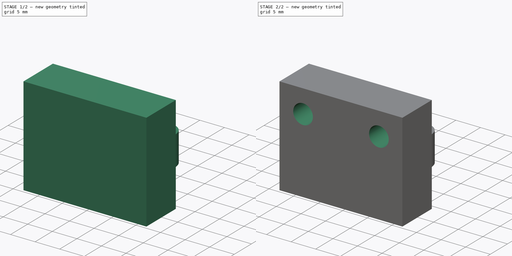
[diagram: build sequence overview — one tinted view per stage of 2, left to right]
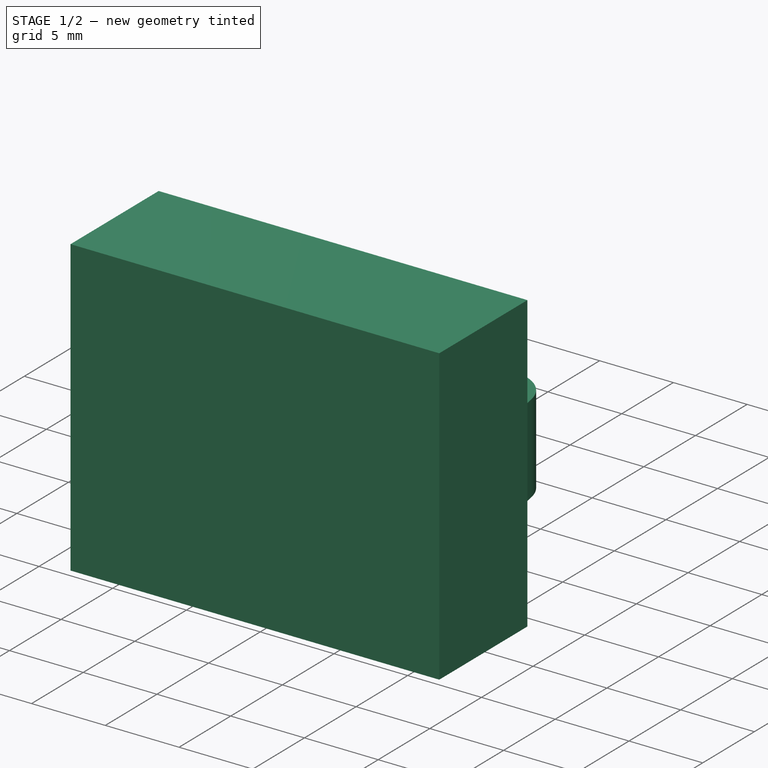
[diagram: stage 1 of 2 — iso view after this stage's code; geometry added in this stage tinted green]
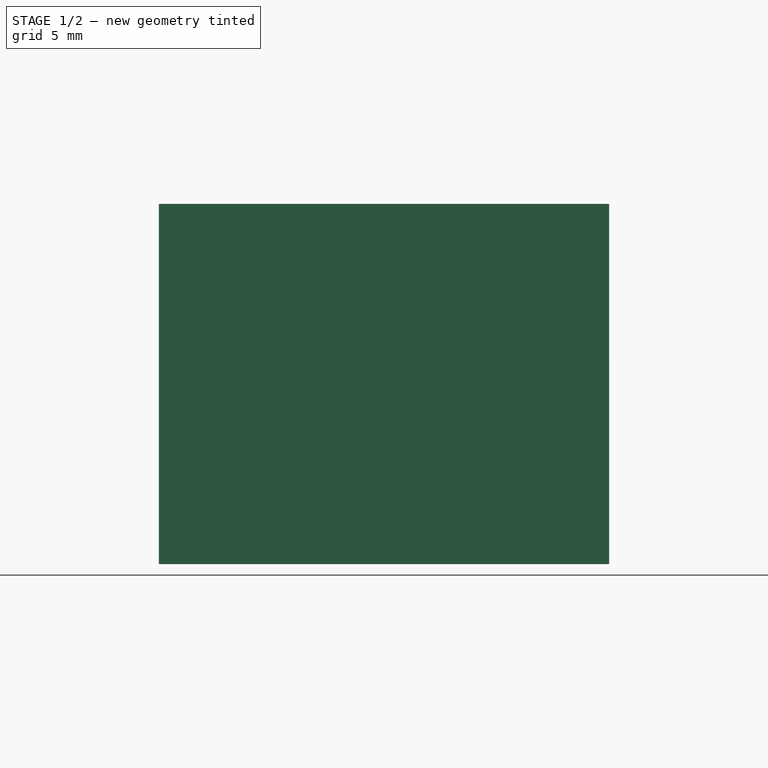
[diagram: stage 1 of 2 — front view after this stage's code; geometry added in this stage tinted green]
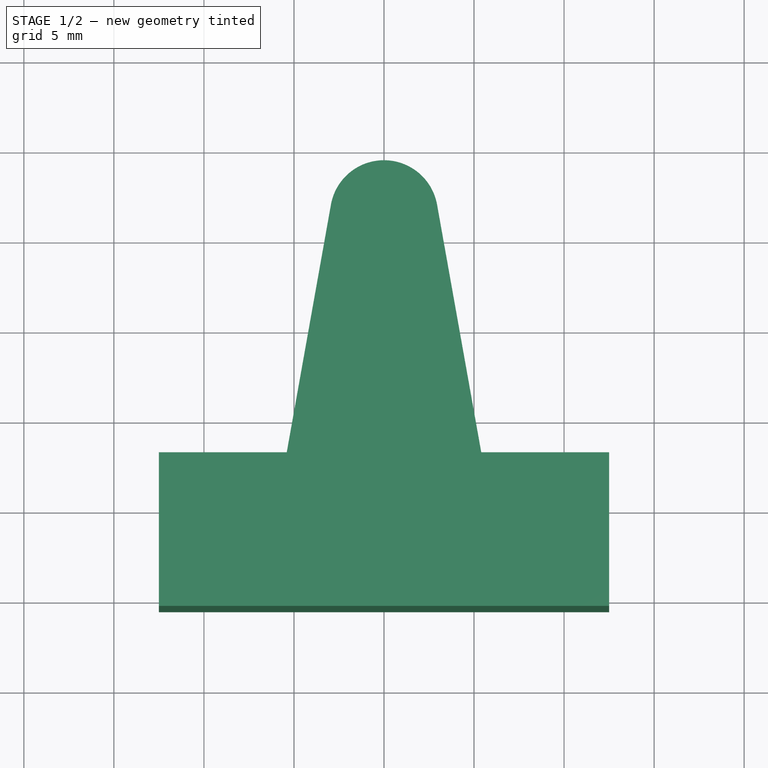
[diagram: stage 1 of 2 — top view after this stage's code; geometry added in this stage tinted green]
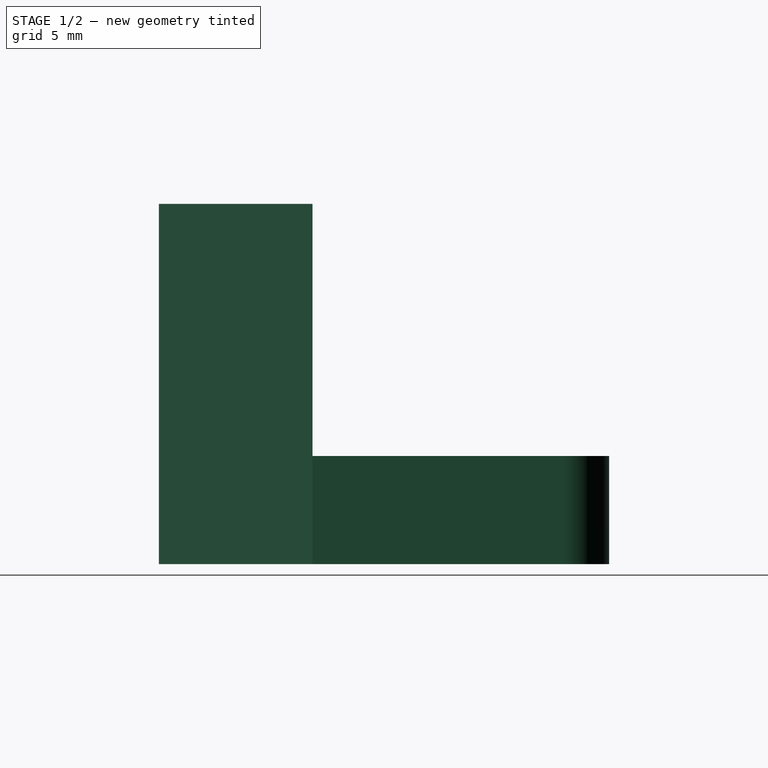
[diagram: stage 1 of 2 — right view after this stage's code; geometry added in this stage tinted green]
FCSTD DOCUMENT  (FreeCAD 0.16R6705 (Git))
Label: fermo3
License: All rights reserved
LicenseURL: http://it.wikipedia.org/wiki/<copyright redacted>
objects: Sketcher::SketchObject×3, PartDesign::Pad×2, PartDesign::Pocket×1
note: 9 computed .brp shape members not serialized (recipe doc carries the construction recipe); baked Part::Feature solids carry a one-line shape summary decoded from their .brp

FEATURE [Sketcher::SketchObject] Sketch001
  sketch-geometry (10):
    g0: LineSegment StartX=0 StartY=-0.513451 StartZ=0 EndX=12.5 EndY=-0.513451 EndZ=0
    g1: LineSegment StartX=12.5 StartY=-0.513451 StartZ=0 EndX=12.5 EndY=8.01888 EndZ=0
    g2: LineSegment StartX=12.5 StartY=8.01888 StartZ=0 EndX=5.44482 EndY=8.01888 EndZ=0
    g3: LineSegment StartX=5.44482 StartY=8.01888 StartZ=0 EndX=2.94707 EndY=22.0187 EndZ=0
    g4: ArcOfCircle CenterX=1.1744e-08 CenterY=21.4929 CenterZ=0 NormalX=0 NormalY=0 NormalZ=1 Radius=2.99361 StartAngle=0.176555 EndAngle=1.5708
    g5: LineSegment StartX=0 StartY=-0.513451 StartZ=0 EndX=-12.5 EndY=-0.513451 EndZ=0
    g6: LineSegment StartX=-12.5 StartY=-0.513451 StartZ=0 EndX=-12.5 EndY=8.01888 EndZ=0
    g7: LineSegment StartX=-12.5 StartY=8.01888 StartZ=0 EndX=-5.44482 EndY=8.01888 EndZ=0
    g8: LineSegment StartX=-5.44482 StartY=8.01888 StartZ=0 EndX=-2.94707 EndY=22.0187 EndZ=0
    g9: ArcOfCircle CenterX=1.1744e-08 CenterY=21.4929 CenterZ=0 NormalX=0 NormalY=0 NormalZ=1 Radius=2.99361 StartAngle=1.5708 EndAngle=2.96504
  constraints (24):
    c: Coincident(g0,g1)
    c: Coincident(g1,g2)
    c: Horizontal(g2)
    c: Coincident(g5,g6)
    c: Coincident(g6,g7)
    c: Coincident(g7,g8)
    c: Horizontal(g7)
    c: Vertical(g1)
    c: Vertical(g6)
    c: Symmetric(g5,g0,g-2)
    c: Horizontal(g0)
    c: Horizontal(g5)
    c: Coincident(g3,g4)
    c: Coincident(g9,g4)
    c: Coincident(g8,g9)
    c: Tangent(g8,g9)
    c: Tangent(g4,g9)
    c: Tangent(g3,g4)
    c: PointOnObject(g4,g-2)
    c: Symmetric(g8,g3,g-2)
    c: Symmetric(g7,g2,g-2)
    c: Coincident(g2,g3)
    c: DistanceX(g5,g0) = 25
    c: DistanceY(g0,g4) = 25
FEATURE [PartDesign::Pad] Pad
  Length = 6
  Length2 = 100
  Sketch = -> Sketch001
  Type = 0
FEATURE [Sketcher::SketchObject] Sketch
  ExternalGeometry = -> [Pad]
  Placement = pos=(0,0,6) rot=(0,0,1;0rad)
  Support = -> Pad [Face14]
  sketch-geometry (4):
    g0: LineSegment StartX=-12.5 StartY=8.01888 StartZ=0 EndX=12.5 EndY=8.01888 EndZ=0
    g1: LineSegment StartX=12.5 StartY=8.01888 StartZ=0 EndX=12.5 EndY=-0.513451 EndZ=0
    g2: LineSegment StartX=12.5 StartY=-0.513451 StartZ=0 EndX=-12.5 EndY=-0.513451 EndZ=0
    g3: LineSegment StartX=-12.5 StartY=-0.513451 StartZ=0 EndX=-12.5 EndY=8.01888 EndZ=0
  constraints (10):
    c: Coincident(g0,g1)
    c: Coincident(g1,g2)
    c: Coincident(g2,g3)
    c: Coincident(g3,g0)
    c: Horizontal(g0)
    c: Horizontal(g2)
    c: Vertical(g1)
    c: Vertical(g3)
    c: Coincident(g-8,g0)
    c: Coincident(g-7,g2)
FEATURE [PartDesign::Pad] Pad001
  Length = 14
  Length2 = 100
  Sketch = -> Sketch
  Type = 0
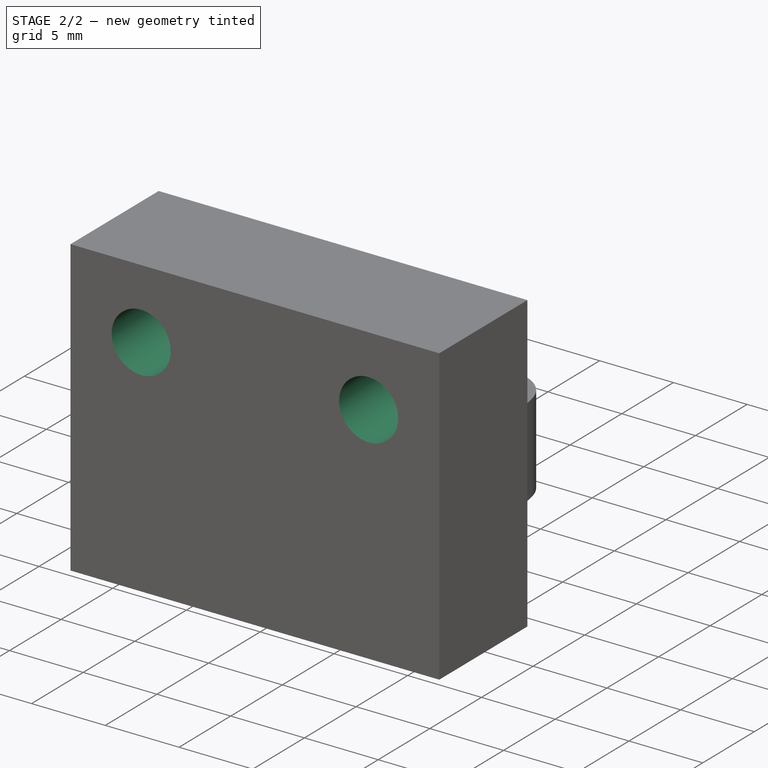
[diagram: stage 2 of 2 — iso view after this stage's code; geometry added in this stage tinted green]
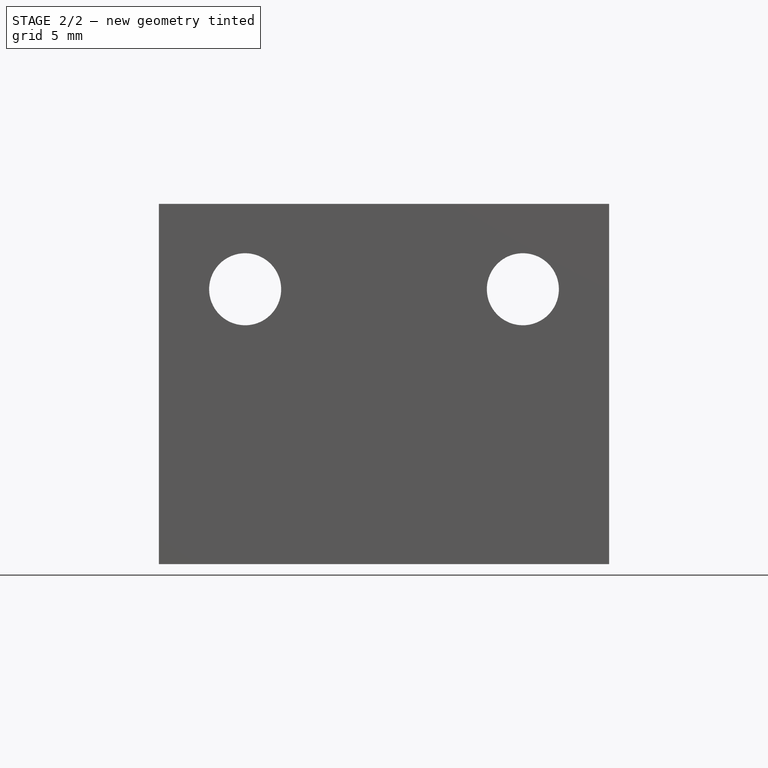
[diagram: stage 2 of 2 — front view after this stage's code; geometry added in this stage tinted green]
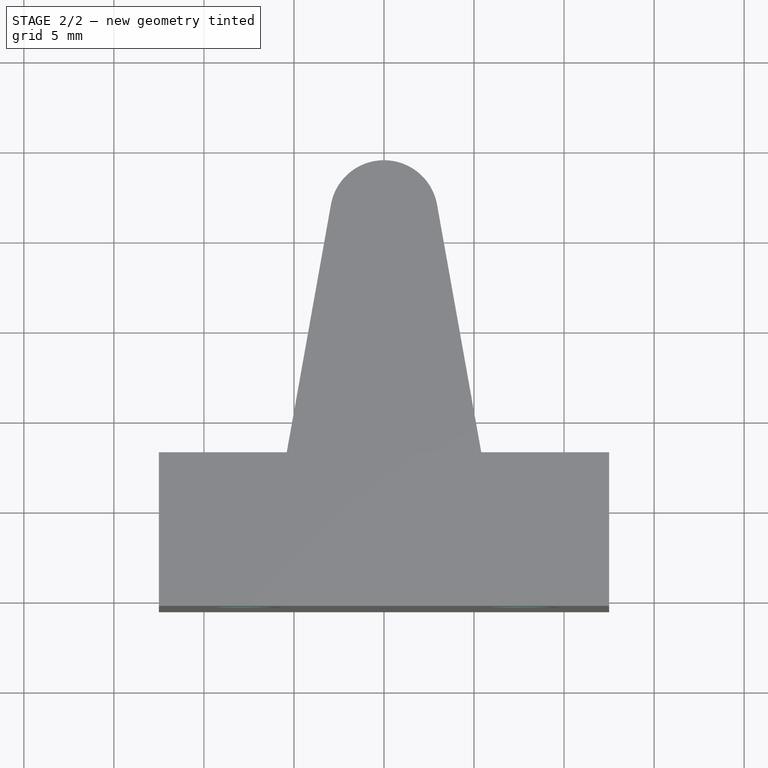
[diagram: stage 2 of 2 — top view after this stage's code; geometry added in this stage tinted green]
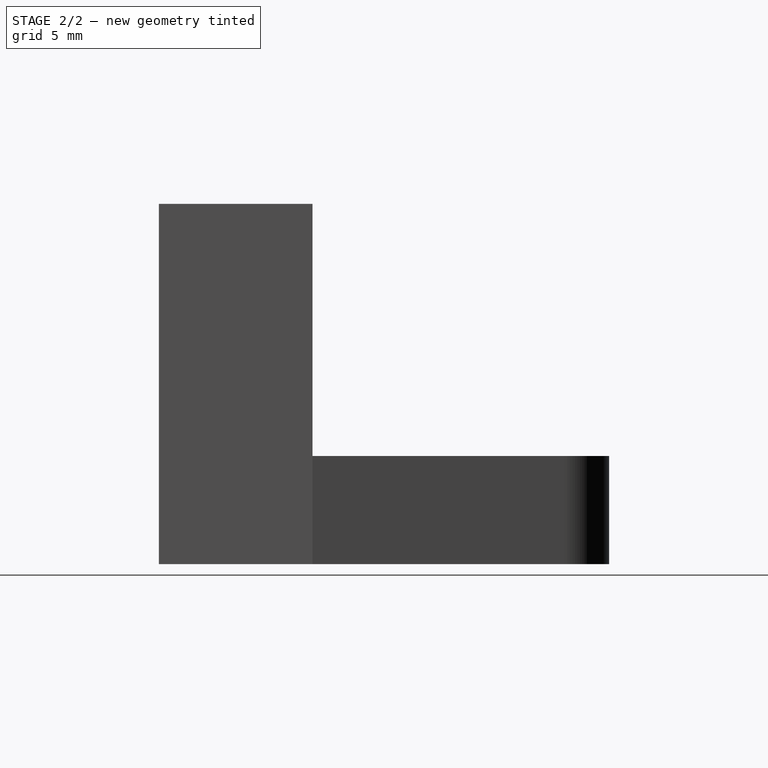
[diagram: stage 2 of 2 — right view after this stage's code; geometry added in this stage tinted green]
FEATURE [Sketcher::SketchObject] Sketch002
  Placement = pos=(0,-0.513451,0) rot=(1,0,0;1.5708rad)
  Support = -> Pad001 [Face12]
  sketch-geometry (2):
    g0: Circle CenterX=-7.71143 CenterY=15.2618 CenterZ=0 NormalX=0 NormalY=0 NormalZ=1 Radius=2
    g1: Circle CenterX=7.71143 CenterY=15.2618 CenterZ=0 NormalX=0 NormalY=0 NormalZ=1 Radius=2
  constraints (3):
    c: Equal(g1,g0)
    c: Radius(g0) = 2
    c: Symmetric(g0,g1,g-2)
FEATURE [PartDesign::Pocket] Pocket
  Length = 5
  Sketch = -> Sketch002
  Type = 1
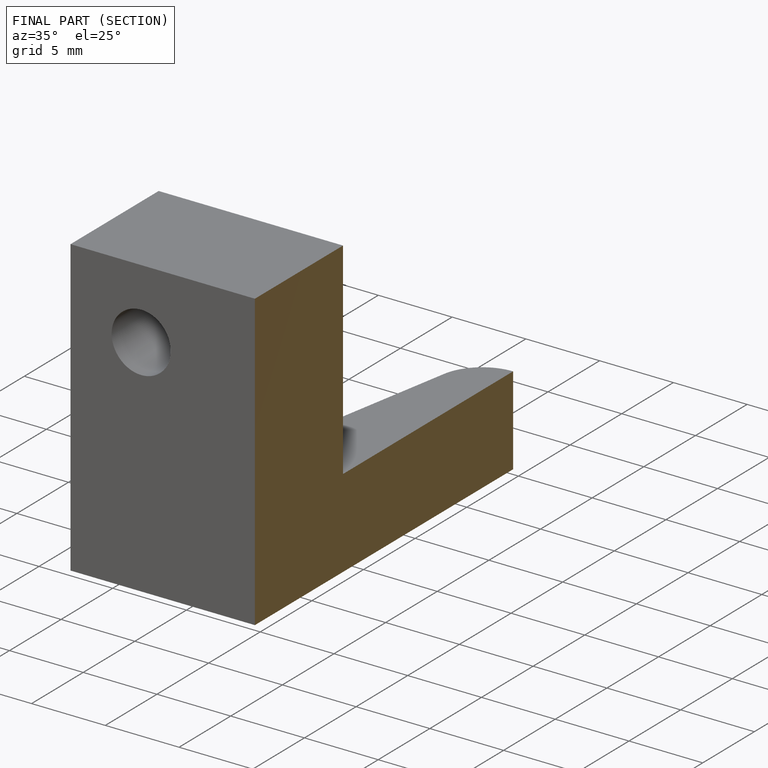
[diagram: finished part — half-section view (interior)]
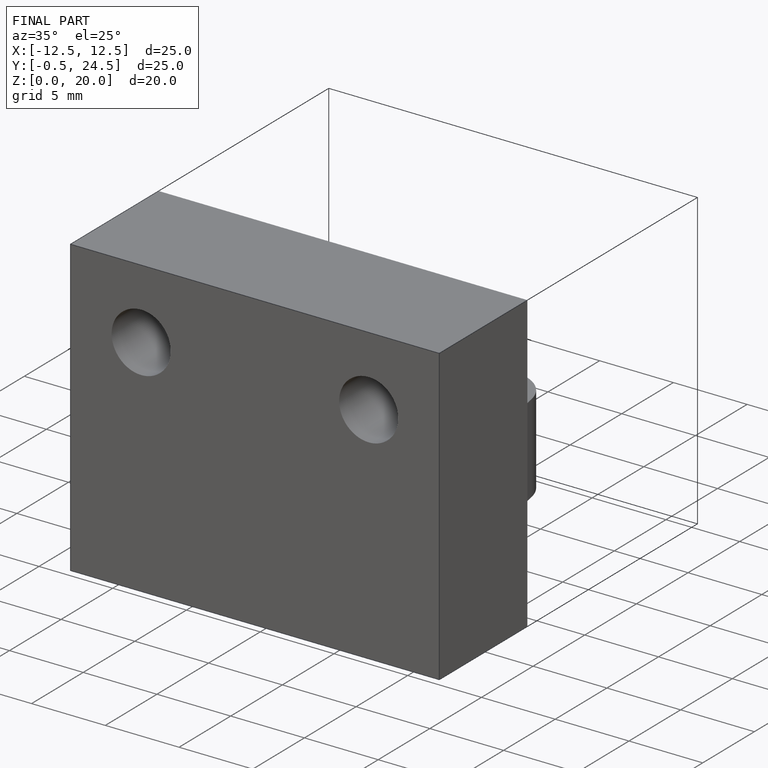
[diagram: finished part — iso view with bounding-box wireframe]
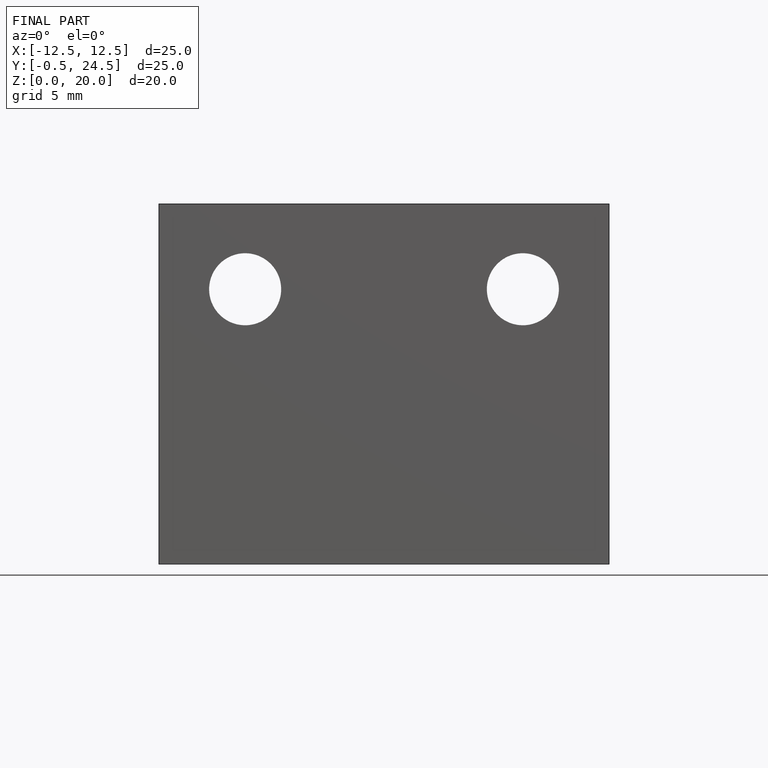
[diagram: finished part — front view with bounding-box wireframe]
